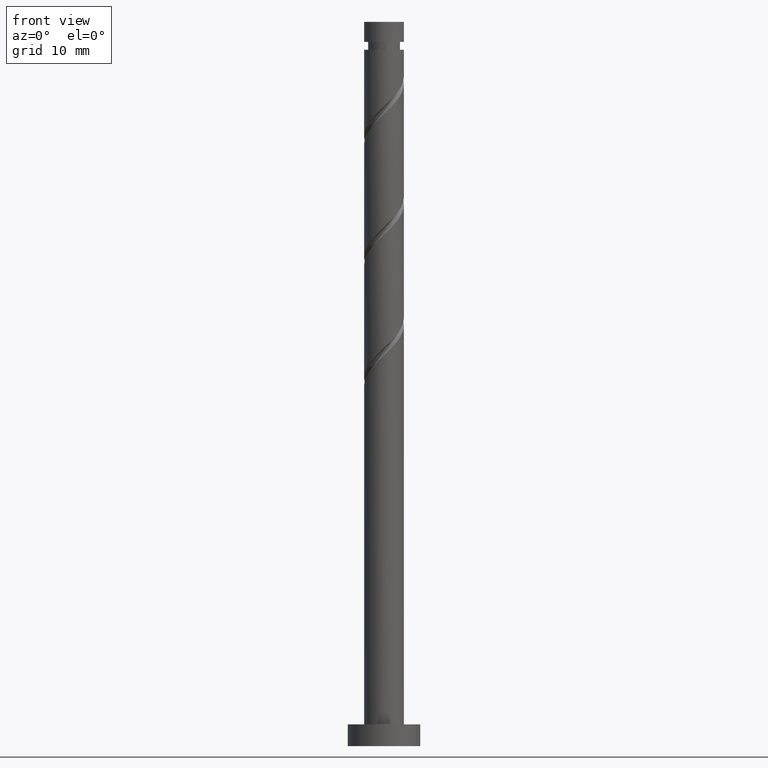
[diagram: clean part render]
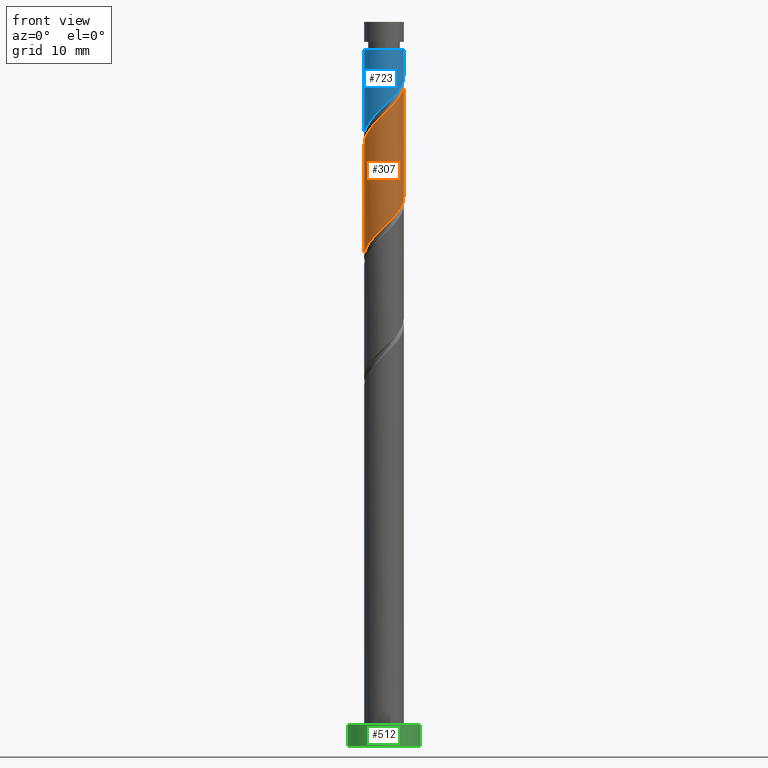
[diagram: same view with three faces highlighted in distinct colors, each labeled with its STEP entity id]
A machine part, front view with three faces highlighted in distinct colors.
Their STEP definitions:

[orange] entity #307 — the highlighted cylindrical surface (edge-blend (fillet) strip) has radius 2.75 mm, axis along (-0, -0, -1).
#21 = CARTESIAN_POINT ( 'NONE',  ( 2.749084659758180837, -0.07094739940441460724, 75.77302368095578800 ) ) ;
#77 = CARTESIAN_POINT ( 'NONE',  ( -0.4075039924296025018, -2.719639773233572200, 86.88413479206688805 ) ) ;
#86 = CARTESIAN_POINT ( 'NONE',  ( 0.5472430904086417192, -2.695000000000003837, 87.81006071799282608 ) ) ;
#89 = CARTESIAN_POINT ( 'NONE',  ( -2.750000000000003109, 1.841227626904649215E-15, 83.11253916300408662 ) ) ;
#109 = CARTESIAN_POINT ( 'NONE',  ( 2.736574719032081937, -0.5556851971715316418, 75.31006071799282608 ) ) ;
#122 = EDGE_LOOP ( 'NONE', ( #463, #716, #214, #541 ) ) ;
#132 = CARTESIAN_POINT ( 'NONE',  ( 2.749999999999999556, -0.03547960441306272777, 75.80689823238255087 ) ) ;
#175 = CARTESIAN_POINT ( 'NONE',  ( 2.151525136548022132, -1.712728696204402823, 89.66191256984468794 ) ) ;
#179 = VERTEX_POINT ( 'NONE', #89 ) ;
#199 = EDGE_CURVE ( 'NONE', #179, #1038, #894, .T. ) ;
#204 = DIRECTION ( 'NONE',  ( -0.000000000000000000, -0.000000000000000000, -1.000000000000000000 ) ) ;
#214 = ORIENTED_EDGE ( 'NONE', *, *, #199, .T. ) ;
#226 = CYLINDRICAL_SURFACE ( 'NONE', #1081, 2.750000000000000000 ) ;
#233 = CARTESIAN_POINT ( 'NONE',  ( -2.453525416322486663, -1.333356764958520291, 68.82857923651134513 ) ) ;
#250 = DIRECTION ( 'NONE',  ( -0.000000000000000000, -0.000000000000000000, -1.000000000000000000 ) ) ;
#268 = EDGE_CURVE ( 'NONE', #1053, #798, #1126, .T. ) ;
#298 = CARTESIAN_POINT ( 'NONE',  ( -2.381483538923163223, -1.458136956886807223, 84.56931997725209271 ) ) ;
#307 = ADVANCED_FACE ( 'NONE', ( #694 ), #226, .T. ) ;
#323 = CARTESIAN_POINT ( 'NONE',  ( -1.313100079662429698, -2.416250852206894173, 85.95820886614097844 ) ) ;
#348 = DIRECTION ( 'NONE',  ( -1.000000000000000000, 0.000000000000000000, 0.000000000000000000 ) ) ;
#355 = CARTESIAN_POINT ( 'NONE',  ( 0.4075039924296007254, -2.719639773233568647, 72.06931997725206429 ) ) ;
#364 = CARTESIAN_POINT ( 'NONE',  ( -1.849524856773552051, -2.092100627450280026, 69.75450516243726895 ) ) ;
#393 = CARTESIAN_POINT ( 'NONE',  ( -2.749999999999999556, -8.403168682627763195E-16, 67.50758227298157976 ) ) ;
#417 = CARTESIAN_POINT ( 'NONE',  ( 1.435984580095754914, -2.345303452802481203, 88.73598664391874991 ) ) ;
#433 = CARTESIAN_POINT ( 'NONE',  ( -2.060316917994744479, -1.821426418339389341, 85.03228294021505462 ) ) ;
#440 = CARTESIAN_POINT ( 'NONE',  ( -1.739150297066326178, -2.184715879791973681, 85.49524590317798811 ) ) ;
#463 = ORIENTED_EDGE ( 'NONE', *, *, #268, .F. ) ;
#482 = CARTESIAN_POINT ( 'NONE',  ( -1.435984580095753804, -2.345303452802476762, 70.21746812540021665 ) ) ;
#489 =( BOUNDED_CURVE ( )  B_SPLINE_CURVE ( 2, ( #522, #1215, #1109, #552, #1003, #298, #433, #440, #323, #1101, #77, #529, #86, #536, #417, #986, #175, #1339, #544, #1230, #760 ),
 .UNSPECIFIED., .F., .T. ) 
 B_SPLINE_CURVE_WITH_KNOTS ( ( 3, 2, 2, 2, 2, 2, 2, 2, 2, 2, 3 ),
 ( 0.5545248053855291737, 0.5555555555555555802, 0.5694444444444444198, 0.5833333333333332593, 0.5972222222222222099, 0.6111111111111111605, 0.6250000000000000000, 0.6388888888888888395, 0.6527777777777777901, 0.6666666666666667407, 0.6795248053855290626 ),
 .UNSPECIFIED. ) 
 CURVE ( )  GEOMETRIC_REPRESENTATION_ITEM ( )  RATIONAL_B_SPLINE_CURVE ( ( 0.9071930855141261407, 0.9080659294509736412, 0.9090909090909136125, 0.8952797754656481866, 0.9090909090909136125, 0.8952797754656481866, 0.9090909090909136125, 0.8952797754656481866, 0.9090909090909136125, 0.8952797754656481866, 0.9090909090909136125, 0.8952797754656481866, 0.9090909090909136125, 0.8952797754656481866, 0.9090909090909136125, 0.8952797754656481866, 0.9090909090909136125, 0.8952797754656481866, 0.9090909090909136125, 0.8963047551055882689, 0.9071930855141258077 ) ) 
 REPRESENTATION_ITEM ( '' )  );
#522 = CARTESIAN_POINT ( 'NONE',  ( -2.750000000000003109, 1.841227626904649215E-15, 83.11253916300410083 ) ) ;
#529 = CARTESIAN_POINT ( 'NONE',  ( 0.07204187739932713108, -2.791493721845329290, 87.34709775502987839 ) ) ;
#536 = CARTESIAN_POINT ( 'NONE',  ( 1.022444303417954892, -2.598506278154678828, 88.27302368095578800 ) ) ;
#541 = ORIENTED_EDGE ( 'NONE', *, *, #834, .F. ) ;
#544 = CARTESIAN_POINT ( 'NONE',  ( 2.607560008403386753, -0.8735735816606149395, 90.58783849577062597 ) ) ;
#552 = CARTESIAN_POINT ( 'NONE',  ( -2.736574719032086378, -0.5556851971715316418, 83.64339405132614047 ) ) ;
#566 = CARTESIAN_POINT ( 'NONE',  ( -0.07204187739932937928, -2.791493721845324849, 71.60635701428913080 ) ) ;
#623 = CARTESIAN_POINT ( 'NONE',  ( 2.750000000000003553, 1.938330909459457832E-15, 91.44587249633741521 ) ) ;
#677 = CARTESIAN_POINT ( 'NONE',  ( 2.559029128977620360, -1.006911077029168045, 74.84709775502987839 ) ) ;
#694 = FACE_OUTER_BOUND ( 'NONE', #122, .T. ) ;
#716 = ORIENTED_EDGE ( 'NONE', *, *, #1307, .F. ) ;
#743 = VECTOR ( 'NONE', #250, 1000.000000000000000 ) ;
#760 = CARTESIAN_POINT ( 'NONE',  ( 2.750000000000003553, 1.938330909459457832E-15, 91.44587249633741521 ) ) ;
#794 = CARTESIAN_POINT ( 'NONE',  ( -2.749999999999999112, -8.403168682627763195E-16, 67.50758227298157976 ) ) ;
#798 = VERTEX_POINT ( 'NONE', #1012 ) ;
#820 = CARTESIAN_POINT ( 'NONE',  ( 2.381483538923157894, -1.458136956886806557, 74.38413479206690226 ) ) ;
#834 = EDGE_CURVE ( 'NONE', #798, #1038, #1260, .T. ) ;
#894 = LINE ( 'NONE', #1357, #962 ) ;
#911 = CARTESIAN_POINT ( 'NONE',  ( -2.151525136548020800, -1.712728696204399492, 69.29154219947432125 ) ) ;
#924 = CARTESIAN_POINT ( 'NONE',  ( 2.750000000000000000, -2.352887231135773990E-16, 75.84091560631489415 ) ) ;
#962 = VECTOR ( 'NONE', #204, 1000.000000000000000 ) ;
#986 = CARTESIAN_POINT ( 'NONE',  ( 1.849524856773553827, -2.092100627450284467, 89.19894960688169760 ) ) ;
#1003 = CARTESIAN_POINT ( 'NONE',  ( -2.559029128977624357, -1.006911077029169155, 84.10635701428911659 ) ) ;
#1012 = CARTESIAN_POINT ( 'NONE',  ( 2.750000000000000000, -2.352887231135773990E-16, 75.84091560631489415 ) ) ;
#1020 = CARTESIAN_POINT ( 'NONE',  ( -1.022444303417955114, -2.598506278154673943, 70.68043108836317856 ) ) ;
#1021 = DIRECTION ( 'NONE',  ( -0.000000000000000000, -0.000000000000000000, -1.000000000000000000 ) ) ;
#1038 = VERTEX_POINT ( 'NONE', #393 ) ;
#1053 = VERTEX_POINT ( 'NONE', #623 ) ;
#1081 = AXIS2_PLACEMENT_3D ( 'NONE', #1151, #1021, #348 ) ;
#1101 = CARTESIAN_POINT ( 'NONE',  ( -0.8870498622585319959, -2.647785824621815554, 86.42117182910394035 ) ) ;
#1109 = CARTESIAN_POINT ( 'NONE',  ( -2.749084659758183502, -0.07094739940441305293, 83.18043108836320698 ) ) ;
#1126 = LINE ( 'NONE', #1395, #743 ) ;
#1150 = CARTESIAN_POINT ( 'NONE',  ( -0.5472430904086417192, -2.694999999999999840, 71.14339405132618310 ) ) ;
#1151 = CARTESIAN_POINT ( 'NONE',  ( 0.000000000000000000, 0.000000000000000000, 100.0000000000000000 ) ) ;
#1157 = CARTESIAN_POINT ( 'NONE',  ( 1.313100079662427033, -2.416250852206890620, 72.99524590317800232 ) ) ;
#1215 = CARTESIAN_POINT ( 'NONE',  ( -2.750000000000003109, -0.03547960441306078488, 83.14655653693642989 ) ) ;
#1230 = CARTESIAN_POINT ( 'NONE',  ( 2.750000000000003553, -0.4483995225062584189, 91.01595298397177203 ) ) ;
#1256 = CARTESIAN_POINT ( 'NONE',  ( -2.749999999999999556, -0.4483995225062551993, 67.93750178534720874 ) ) ;
#1260 =( BOUNDED_CURVE ( )  B_SPLINE_CURVE ( 2, ( #924, #132, #21, #109, #677, #820, #1365, #1387, #1157, #1379, #355, #566, #1150, #1020, #482, #364, #911, #233, #1485, #1256, #794 ),
 .UNSPECIFIED., .F., .T. ) 
 B_SPLINE_CURVE_WITH_KNOTS ( ( 3, 2, 2, 2, 2, 2, 2, 2, 2, 2, 3 ),
 ( 0.5545248053855291737, 0.5555555555555555802, 0.5694444444444444198, 0.5833333333333333703, 0.5972222222222222099, 0.6111111111111111605, 0.6250000000000000000, 0.6388888888888888395, 0.6527777777777777901, 0.6666666666666666297, 0.6795248053855290626 ),
 .UNSPECIFIED. ) 
 CURVE ( )  GEOMETRIC_REPRESENTATION_ITEM ( )  RATIONAL_B_SPLINE_CURVE ( ( 0.9071930855141200345, 0.9080659294509676460, 0.9090909090909076173, 0.8952797754656421914, 0.9090909090909076173, 0.8952797754656421914, 0.9090909090909076173, 0.8952797754656421914, 0.9090909090909076173, 0.8952797754656421914, 0.9090909090909076173, 0.8952797754656421914, 0.9090909090909076173, 0.8952797754656421914, 0.9090909090909076173, 0.8952797754656421914, 0.9090909090909076173, 0.8952797754656421914, 0.9090909090909076173, 0.8963047551055822737, 0.9071930855141199235 ) ) 
 REPRESENTATION_ITEM ( '' )  );
#1307 = EDGE_CURVE ( 'NONE', #179, #1053, #489, .T. ) ;
#1339 = CARTESIAN_POINT ( 'NONE',  ( 2.453525416322490216, -1.333356764958522733, 90.12487553280763564 ) ) ;
#1357 = CARTESIAN_POINT ( 'NONE',  ( -2.750000000000000000, 0.000000000000000000, 100.0000000000000000 ) ) ;
#1365 = CARTESIAN_POINT ( 'NONE',  ( 2.060316917994740482, -1.821426418339389119, 73.92117182910394035 ) ) ;
#1379 = CARTESIAN_POINT ( 'NONE',  ( 0.8870498622585297754, -2.647785824621812445, 72.53228294021505462 ) ) ;
#1387 = CARTESIAN_POINT ( 'NONE',  ( 1.739150297066322848, -2.184715879791970128, 73.45820886614097844 ) ) ;
#1395 = CARTESIAN_POINT ( 'NONE',  ( 2.750000000000000000, 3.367778697655220519E-16, 100.0000000000000000 ) ) ;
#1485 = CARTESIAN_POINT ( 'NONE',  ( -2.607560008403383200, -0.8735735816606116089, 68.36561627354839743 ) ) ;

[blue] entity #723 — the highlighted cylindrical surface (edge-blend (fillet) strip) has radius 2.75 mm, axis along (-0, -0, -1).
#69 = CARTESIAN_POINT ( 'NONE',  ( -2.750000000000000000, 0.000000000000000000, 100.0000000000000000 ) ) ;
#83 = VERTEX_POINT ( 'NONE', #499 ) ;
#108 = CARTESIAN_POINT ( 'NONE',  ( -2.607560008403383200, -0.8735735816606116089, 85.03228294021508304 ) ) ;
#232 = CARTESIAN_POINT ( 'NONE',  ( -1.022444303417955114, -2.598506278154673943, 87.34709775502984996 ) ) ;
#236 = AXIS2_PLACEMENT_3D ( 'NONE', #726, #490, #611 ) ;
#291 = CARTESIAN_POINT ( 'NONE',  ( 0.4075039924296007254, -2.719639773233568647, 88.73598664391876412 ) ) ;
#295 =( BOUNDED_CURVE ( )  B_SPLINE_CURVE ( 2, ( #761, #653, #1110, #885, #1347, #769, #1117, #1004, #1466, #441, #291, #1201, #583, #232, #802, #1484, #1378, #1273, #108, #699, #1241 ),
 .UNSPECIFIED., .F., .T. ) 
 B_SPLINE_CURVE_WITH_KNOTS ( ( 3, 2, 2, 2, 2, 2, 2, 2, 2, 2, 3 ),
 ( 0.3045248053855287851, 0.3055555555555555802, 0.3194444444444444198, 0.3333333333333333148, 0.3472222222222222099, 0.3611111111111111049, 0.3750000000000000000, 0.3888888888888888951, 0.4027777777777777901, 0.4166666666666666852, 0.4295248053855290626 ),
 .UNSPECIFIED. ) 
 CURVE ( )  GEOMETRIC_REPRESENTATION_ITEM ( )  RATIONAL_B_SPLINE_CURVE ( ( 0.9071930855141194794, 0.9080659294509673130, 0.9090909090909076173, 0.8952797754656421914, 0.9090909090909076173, 0.8952797754656421914, 0.9090909090909076173, 0.8952797754656421914, 0.9090909090909076173, 0.8952797754656421914, 0.9090909090909076173, 0.8952797754656421914, 0.9090909090909076173, 0.8952797754656421914, 0.9090909090909076173, 0.8952797754656421914, 0.9090909090909076173, 0.8952797754656421914, 0.9090909090909076173, 0.8963047551055822737, 0.9071930855141197014 ) ) 
 REPRESENTATION_ITEM ( '' )  );
#313 = ORIENTED_EDGE ( 'NONE', *, *, #1258, .T. ) ;
#321 = VERTEX_POINT ( 'NONE', #919 ) ;
#361 = VERTEX_POINT ( 'NONE', #1305 ) ;
#380 = CARTESIAN_POINT ( 'NONE',  ( 2.750000000000000888, 6.722534946102212282E-17, 92.50758227298157976 ) ) ;
#402 = EDGE_CURVE ( 'NONE', #83, #361, #898, .T. ) ;
#441 = CARTESIAN_POINT ( 'NONE',  ( 0.8870498622585297754, -2.647785824621812445, 89.19894960688169760 ) ) ;
#472 = ORIENTED_EDGE ( 'NONE', *, *, #1142, .F. ) ;
#490 = DIRECTION ( 'NONE',  ( -0.000000000000000000, -0.000000000000000000, -1.000000000000000000 ) ) ;
#496 = DIRECTION ( 'NONE',  ( -0.000000000000000000, -0.000000000000000000, -1.000000000000000000 ) ) ;
#499 = CARTESIAN_POINT ( 'NONE',  ( 2.750000000000000444, 3.367778697655221505E-16, 96.14339405132615468 ) ) ;
#553 = DIRECTION ( 'NONE',  ( -1.000000000000000000, 0.000000000000000000, 0.000000000000000000 ) ) ;
#583 = CARTESIAN_POINT ( 'NONE',  ( -0.5472430904086417192, -2.694999999999999840, 87.81006071799281187 ) ) ;
#611 = DIRECTION ( 'NONE',  ( -1.000000000000000000, 0.000000000000000000, 0.000000000000000000 ) ) ;
#614 = VECTOR ( 'NONE', #1199, 1000.000000000000000 ) ;
#639 = CARTESIAN_POINT ( 'NONE',  ( 0.000000000000000000, 0.000000000000000000, 100.0000000000000000 ) ) ;
#645 = LINE ( 'NONE', #69, #614 ) ;
#653 = CARTESIAN_POINT ( 'NONE',  ( 2.750000000000000444, -0.03547960441304918305, 92.47356489904920807 ) ) ;
#662 = CYLINDRICAL_SURFACE ( 'NONE', #1407, 2.750000000000000000 ) ;
#699 = CARTESIAN_POINT ( 'NONE',  ( -2.749999999999999556, -0.4483995225062554213, 84.60416845201389435 ) ) ;
#723 = ADVANCED_FACE ( 'NONE', ( #988 ), #662, .T. ) ;
#726 = CARTESIAN_POINT ( 'NONE',  ( 0.000000000000000000, 0.000000000000000000, 96.14339405132615468 ) ) ;
#738 = EDGE_CURVE ( 'NONE', #1136, #321, #295, .T. ) ;
#761 = CARTESIAN_POINT ( 'NONE',  ( 2.750000000000000888, 6.722534946102213514E-17, 92.50758227298157976 ) ) ;
#769 = CARTESIAN_POINT ( 'NONE',  ( 2.381483538923157894, -1.458136956886806557, 91.05080145873355946 ) ) ;
#802 = CARTESIAN_POINT ( 'NONE',  ( -1.435984580095753804, -2.345303452802476762, 86.88413479206688805 ) ) ;
#827 = LINE ( 'NONE', #1289, #1237 ) ;
#885 = CARTESIAN_POINT ( 'NONE',  ( 2.736574719032081937, -0.5556851971715316418, 91.97672738465949749 ) ) ;
#898 = CIRCLE ( 'NONE', #236, 2.750000000000000888 ) ;
#919 = CARTESIAN_POINT ( 'NONE',  ( -2.750000000000000888, -1.139096199200652574E-15, 84.17424893964826538 ) ) ;
#957 = ORIENTED_EDGE ( 'NONE', *, *, #738, .F. ) ;
#988 = FACE_OUTER_BOUND ( 'NONE', #1351, .T. ) ;
#1004 = CARTESIAN_POINT ( 'NONE',  ( 1.739150297066322848, -2.184715879791970128, 90.12487553280763564 ) ) ;
#1110 = CARTESIAN_POINT ( 'NONE',  ( 2.749084659758180837, -0.07094739940441460724, 92.43969034762243098 ) ) ;
#1117 = CARTESIAN_POINT ( 'NONE',  ( 2.060316917994740482, -1.821426418339389119, 90.58783849577062597 ) ) ;
#1136 = VERTEX_POINT ( 'NONE', #380 ) ;
#1142 = EDGE_CURVE ( 'NONE', #83, #1136, #827, .T. ) ;
#1199 = DIRECTION ( 'NONE',  ( -0.000000000000000000, -0.000000000000000000, -1.000000000000000000 ) ) ;
#1201 = CARTESIAN_POINT ( 'NONE',  ( -0.07204187739932937928, -2.791493721845324849, 88.27302368095577378 ) ) ;
#1228 = ORIENTED_EDGE ( 'NONE', *, *, #402, .T. ) ;
#1237 = VECTOR ( 'NONE', #496, 1000.000000000000000 ) ;
#1241 = CARTESIAN_POINT ( 'NONE',  ( -2.750000000000000888, -1.139096199200652574E-15, 84.17424893964826538 ) ) ;
#1258 = EDGE_CURVE ( 'NONE', #361, #321, #645, .T. ) ;
#1273 = CARTESIAN_POINT ( 'NONE',  ( -2.453525416322486663, -1.333356764958520291, 85.49524590317798811 ) ) ;
#1289 = CARTESIAN_POINT ( 'NONE',  ( 2.750000000000000000, 3.367778697655220519E-16, 100.0000000000000000 ) ) ;
#1305 = CARTESIAN_POINT ( 'NONE',  ( -2.750000000000000444, 0.000000000000000000, 96.14339405132615468 ) ) ;
#1347 = CARTESIAN_POINT ( 'NONE',  ( 2.559029128977620360, -1.006911077029168045, 91.51376442169653558 ) ) ;
#1351 = EDGE_LOOP ( 'NONE', ( #472, #1228, #313, #957 ) ) ;
#1378 = CARTESIAN_POINT ( 'NONE',  ( -2.151525136548020800, -1.712728696204399492, 85.95820886614096423 ) ) ;
#1407 = AXIS2_PLACEMENT_3D ( 'NONE', #639, #1450, #553 ) ;
#1450 = DIRECTION ( 'NONE',  ( -0.000000000000000000, -0.000000000000000000, -1.000000000000000000 ) ) ;
#1466 = CARTESIAN_POINT ( 'NONE',  ( 1.313100079662427033, -2.416250852206890620, 89.66191256984468794 ) ) ;
#1484 = CARTESIAN_POINT ( 'NONE',  ( -1.849524856773552051, -2.092100627450280026, 86.42117182910392614 ) ) ;

[green] entity #512 — the highlighted cylindrical surface (edge-blend (fillet) strip) has radius 5 mm, axis along (-0, -0, -1).
#49 = DIRECTION ( 'NONE',  ( -0.000000000000000000, -0.000000000000000000, -1.000000000000000000 ) ) ;
#63 = VECTOR ( 'NONE', #503, 1000.000000000000000 ) ;
#163 = CARTESIAN_POINT ( 'NONE',  ( 5.000000000000000000, 6.123233995736766282E-16, 3.000000000000000000 ) ) ;
#201 = CARTESIAN_POINT ( 'NONE',  ( 5.000000000000000000, 6.123233995736766282E-16, 0.000000000000000000 ) ) ;
#237 = VERTEX_POINT ( 'NONE', #1460 ) ;
#276 = CARTESIAN_POINT ( 'NONE',  ( -5.000000000000000000, 0.000000000000000000, 3.000000000000000000 ) ) ;
#306 = VECTOR ( 'NONE', #1409, 1000.000000000000000 ) ;
#331 = DIRECTION ( 'NONE',  ( 1.000000000000000000, 0.000000000000000000, 0.000000000000000000 ) ) ;
#358 = AXIS2_PLACEMENT_3D ( 'NONE', #605, #49, #857 ) ;
#371 = CARTESIAN_POINT ( 'NONE',  ( 0.000000000000000000, 0.000000000000000000, 0.000000000000000000 ) ) ;
#397 = LINE ( 'NONE', #276, #306 ) ;
#403 = AXIS2_PLACEMENT_3D ( 'NONE', #371, #451, #476 ) ;
#431 = ORIENTED_EDGE ( 'NONE', *, *, #1148, .F. ) ;
#451 = DIRECTION ( 'NONE',  ( 0.000000000000000000, 0.000000000000000000, 1.000000000000000000 ) ) ;
#476 = DIRECTION ( 'NONE',  ( 1.000000000000000000, 0.000000000000000000, 0.000000000000000000 ) ) ;
#485 = VERTEX_POINT ( 'NONE', #719 ) ;
#500 = AXIS2_PLACEMENT_3D ( 'NONE', #979, #1440, #331 ) ;
#503 = DIRECTION ( 'NONE',  ( -0.000000000000000000, -0.000000000000000000, -1.000000000000000000 ) ) ;
#509 = LINE ( 'NONE', #163, #63 ) ;
#512 = ADVANCED_FACE ( 'NONE', ( #1179 ), #618, .T. ) ;
#605 = CARTESIAN_POINT ( 'NONE',  ( 0.000000000000000000, 0.000000000000000000, 3.000000000000000000 ) ) ;
#618 = CYLINDRICAL_SURFACE ( 'NONE', #358, 5.000000000000000000 ) ;
#652 = CARTESIAN_POINT ( 'NONE',  ( -5.000000000000000000, 0.000000000000000000, 3.000000000000000000 ) ) ;
#719 = CARTESIAN_POINT ( 'NONE',  ( -5.000000000000000000, 0.000000000000000000, 0.000000000000000000 ) ) ;
#832 = EDGE_CURVE ( 'NONE', #485, #1337, #1210, .T. ) ;
#857 = DIRECTION ( 'NONE',  ( -1.000000000000000000, 0.000000000000000000, 0.000000000000000000 ) ) ;
#940 = EDGE_CURVE ( 'NONE', #1245, #485, #397, .T. ) ;
#979 = CARTESIAN_POINT ( 'NONE',  ( 0.000000000000000000, 0.000000000000000000, 3.000000000000000000 ) ) ;
#987 = EDGE_CURVE ( 'NONE', #237, #1337, #509, .T. ) ;
#1069 = EDGE_LOOP ( 'NONE', ( #1404, #431, #1455, #1431 ) ) ;
#1148 = EDGE_CURVE ( 'NONE', #1245, #237, #1262, .T. ) ;
#1179 = FACE_OUTER_BOUND ( 'NONE', #1069, .T. ) ;
#1210 = CIRCLE ( 'NONE', #403, 5.000000000000000000 ) ;
#1245 = VERTEX_POINT ( 'NONE', #652 ) ;
#1262 = CIRCLE ( 'NONE', #500, 5.000000000000000000 ) ;
#1337 = VERTEX_POINT ( 'NONE', #201 ) ;
#1404 = ORIENTED_EDGE ( 'NONE', *, *, #987, .F. ) ;
#1409 = DIRECTION ( 'NONE',  ( -0.000000000000000000, -0.000000000000000000, -1.000000000000000000 ) ) ;
#1431 = ORIENTED_EDGE ( 'NONE', *, *, #832, .T. ) ;
#1440 = DIRECTION ( 'NONE',  ( 0.000000000000000000, 0.000000000000000000, 1.000000000000000000 ) ) ;
#1455 = ORIENTED_EDGE ( 'NONE', *, *, #940, .T. ) ;
#1460 = CARTESIAN_POINT ( 'NONE',  ( 5.000000000000000000, 6.123233995736766282E-16, 3.000000000000000000 ) ) ;